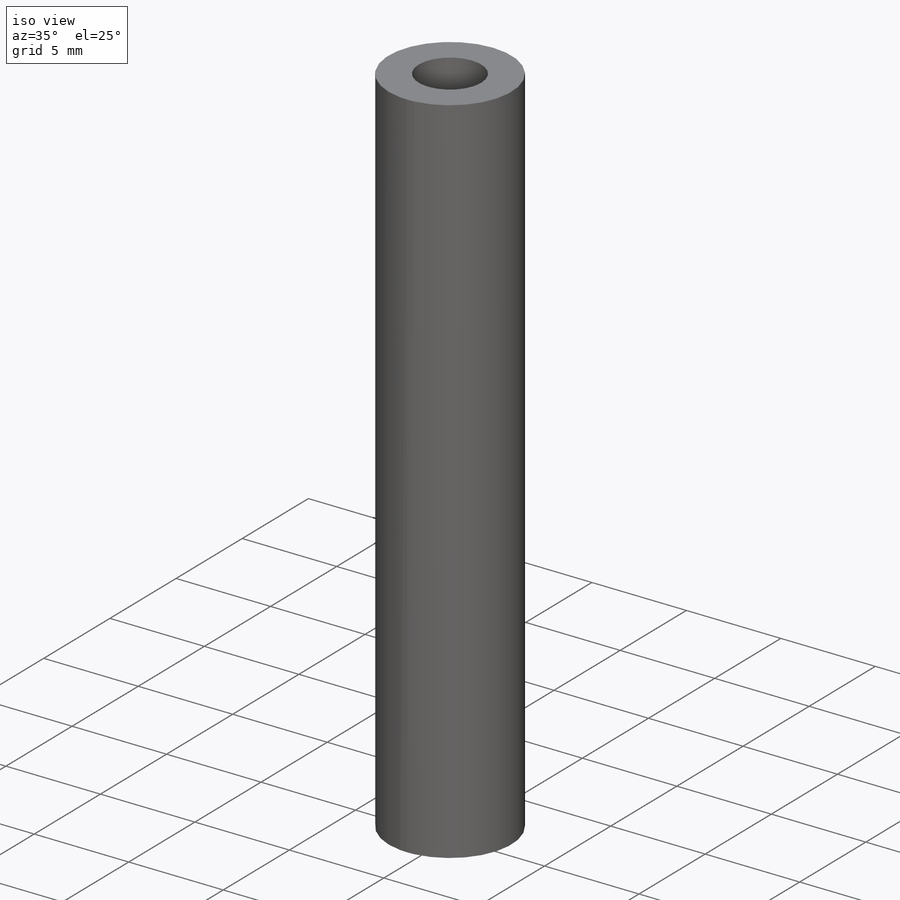
[diagram: iso view]
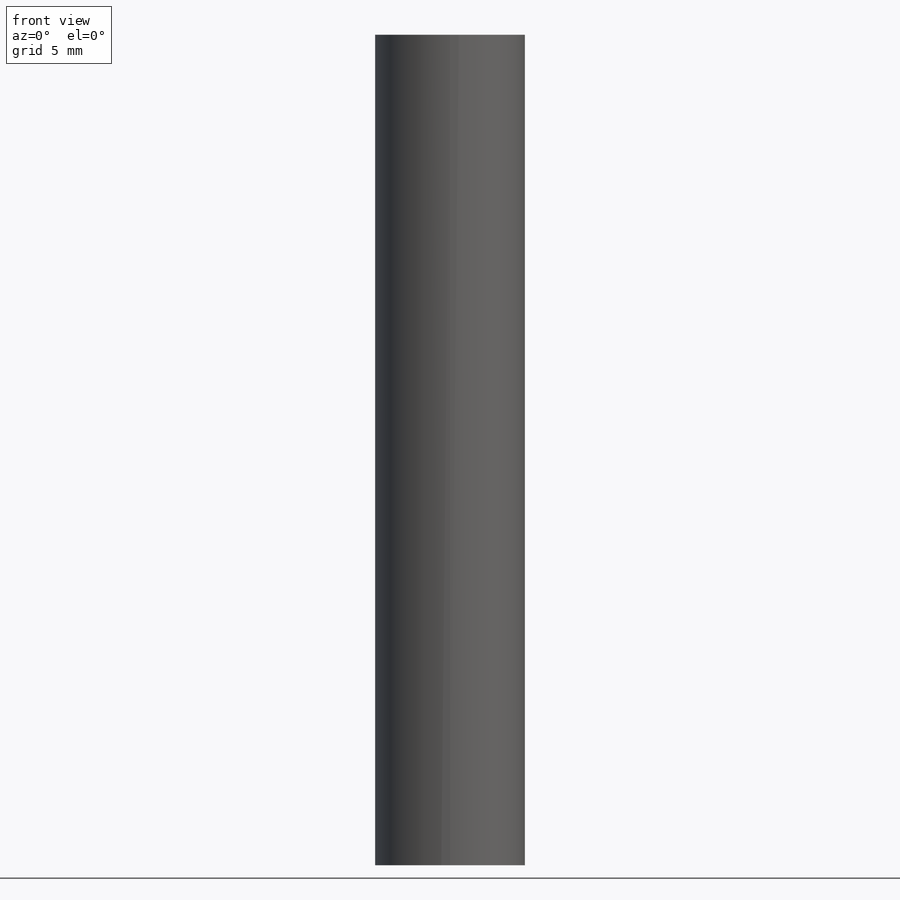
[diagram: front view]
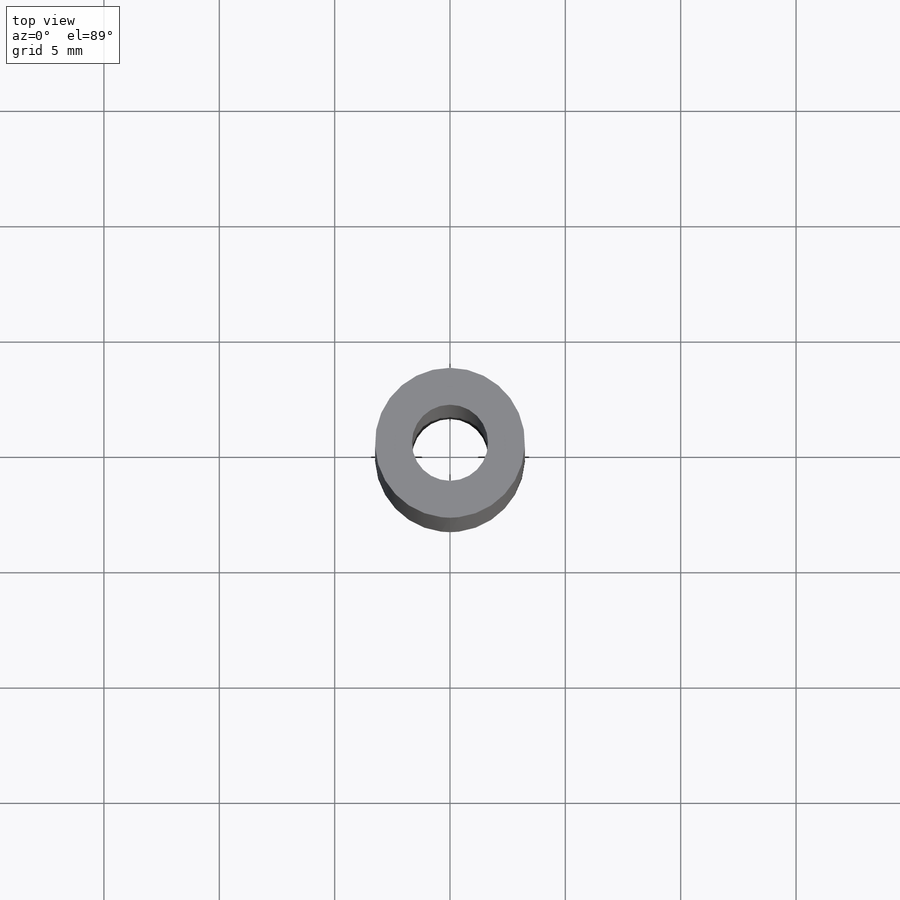
[diagram: top view]
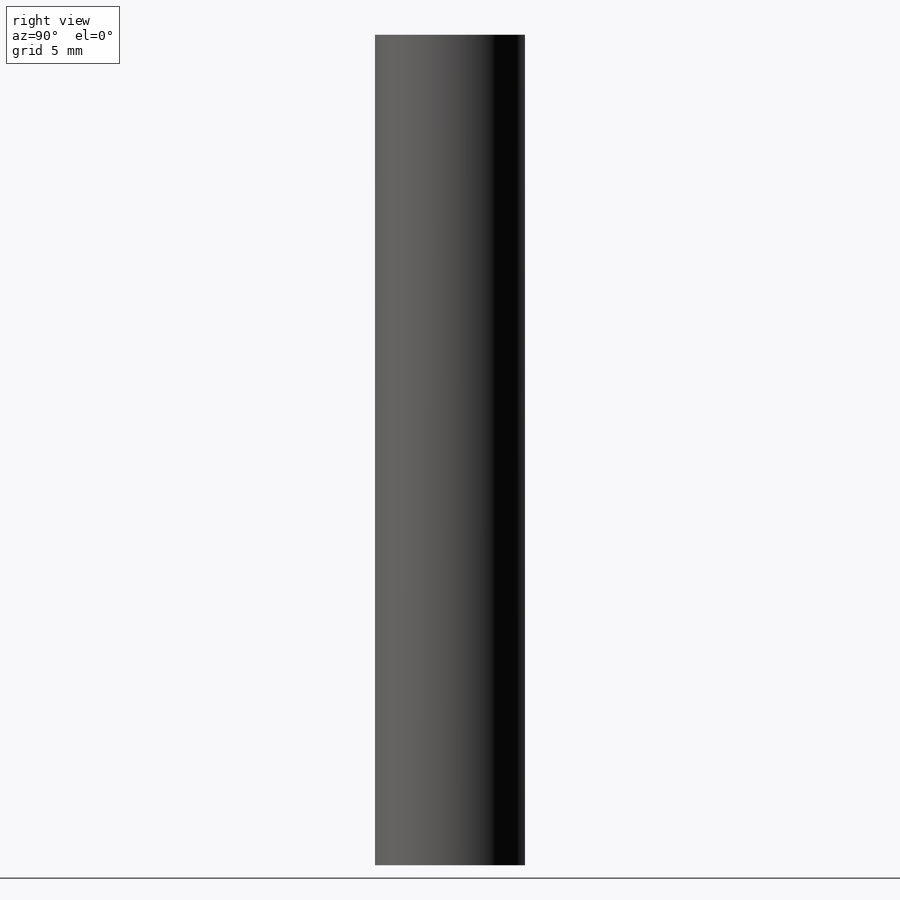
[diagram: right view]
SOLIDWORKS PART (.sldprt)
format: sldprt  version: not decoded by parser v0  size: 143,872 bytes
history: native  units: mm
features: thread x6, plane x3, sketch x3, material x1, extrude x1, hole x1 (+9 scaffold rows collapsed)
feature tree (24):
  scaffold x9  (default folders/planes/origin — collapsed)
  material  "Material <não especificado>"
  plane  "Plano frontal"
  plane  "Plano superior"
  plane  "Plano direito"
  sketch  "Esboço2"  dims[D1=~21.570029mm]
  extrude  "Ressalto-extrusão1"  Depth=36mm
  hole  "Furo roscado de M41"  Diameter=3.3mm Depth=36mm
  sketch  "3DSketch2"
  sketch  "Esboço4"  dims[hole-wizard template sketch: 54 standard entries collapsed; hole parameters kept: c17.Thru Tap Drill Dia.=3.3mm c17.Thru Tap Drill Depth=36.0mm c17.Far C'Sink Dia.=4.05mm c17.D4=~2.963249mm c17.Far C'Sink Angle=90.0deg]
  thread  "Rosca de furo1"  Diameter=4mm  [1 undecoded]
  thread  "Rosca de furo2"  Diameter=4mm  [1 undecoded]
  thread  "Rosca de furo3"  Diameter=4mm  [1 undecoded]
  thread  "Rosca de furo4"  Diameter=4mm  [1 undecoded]
  thread  "Rosca de furo5"  Diameter=4mm  [1 undecoded]
  thread  "Rosca de furo6"  Diameter=4mm  [1 undecoded]
decode coverage: 10 of 11 modeling features carry decoded parameters
note: ~ marks probable driven/reference dimensions
note: 6 parameter values undecoded
note: suppression state not decoded; provenance and decode notes live in map.json
